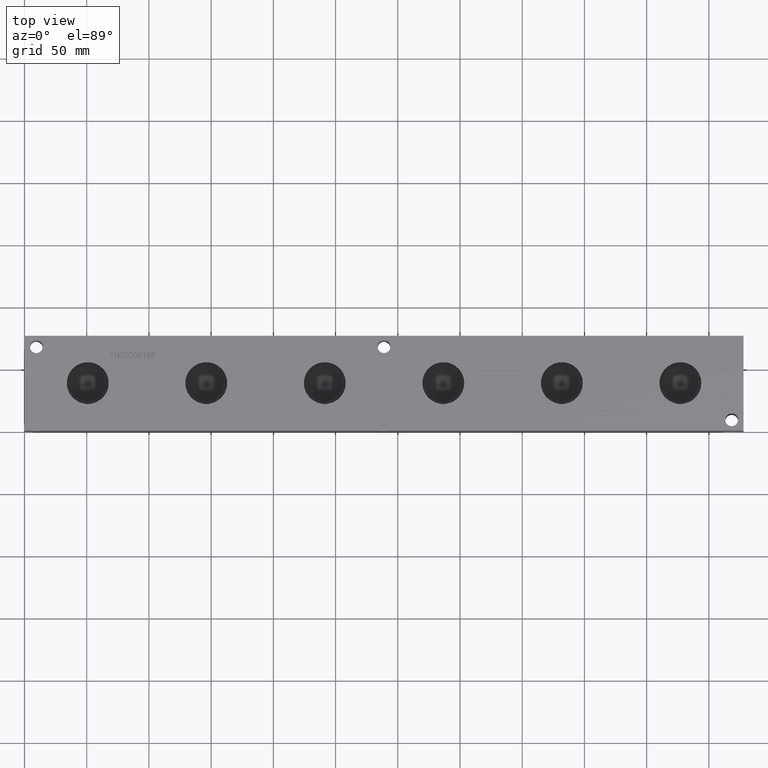
[diagram: clean part render]
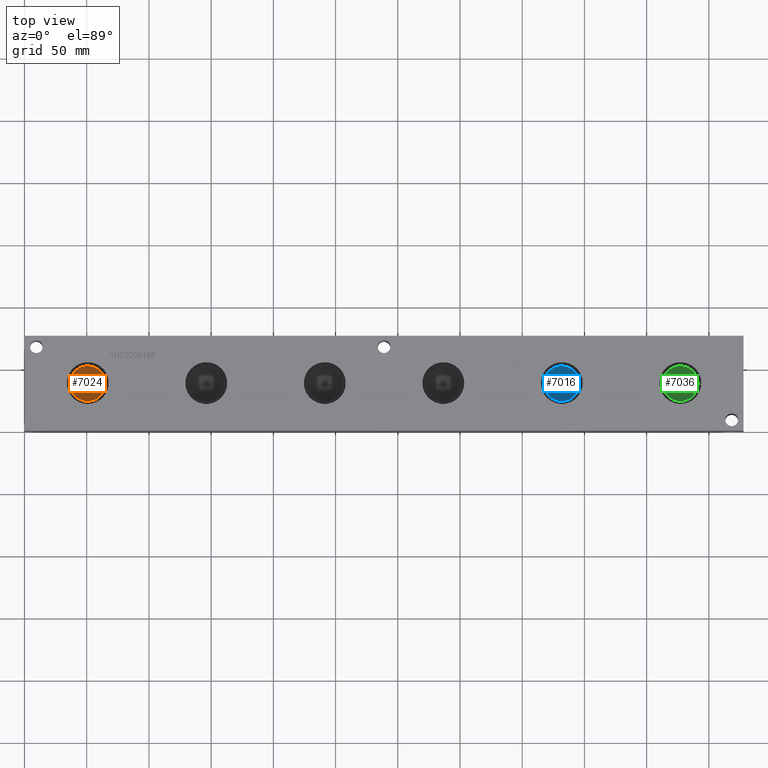
[diagram: same view with three faces highlighted in distinct colors, each labeled with its STEP entity id]
A machine part, top view with three faces highlighted in distinct colors.
Their STEP definitions:

[orange] entity #7024 — the highlighted conical surface has half-angle 60 deg.
#16=CONICAL_SURFACE('',#7344,7.14375,1.0471975511966);
#102=CIRCLE('',#7345,14.2875);
#103=CIRCLE('',#7346,14.2875);
#738=FACE_OUTER_BOUND('',#1135,.T.);
#1135=EDGE_LOOP('',(#6149,#6150,#6151,#6152));
#1832=LINE('',#11954,#2508);
#2508=VECTOR('',#8616,7.14375);
#3348=VERTEX_POINT('',#11950);
#3349=VERTEX_POINT('',#11951);
#3350=VERTEX_POINT('',#11953);
#4300=EDGE_CURVE('',#3348,#3349,#102,.T.);
#4301=EDGE_CURVE('',#3349,#3350,#1832,.T.);
#4302=EDGE_CURVE('',#3349,#3348,#103,.T.);
#6149=ORIENTED_EDGE('',*,*,#4300,.T.);
#6150=ORIENTED_EDGE('',*,*,#4301,.T.);
#6151=ORIENTED_EDGE('',*,*,#4301,.F.);
#6152=ORIENTED_EDGE('',*,*,#4302,.T.);
#7024=ADVANCED_FACE('',(#738),#16,.F.);
#7344=AXIS2_PLACEMENT_3D('',#11949,#8612,#8613);
#7345=AXIS2_PLACEMENT_3D('',#11952,#8614,#8615);
#7346=AXIS2_PLACEMENT_3D('',#11955,#8617,#8618);
#8612=DIRECTION('center_axis',(0.,0.,1.));
#8613=DIRECTION('ref_axis',(1.,0.,0.));
#8614=DIRECTION('center_axis',(0.,0.,1.));
#8615=DIRECTION('ref_axis',(1.,0.,0.));
#8616=DIRECTION('',(0.866025403784438,1.06057523872491E-16,-0.5));
#8617=DIRECTION('center_axis',(0.,0.,1.));
#8618=DIRECTION('ref_axis',(1.,0.,0.));
#11949=CARTESIAN_POINT('Origin',(50.8,38.1,52.2514640144766));
#11950=CARTESIAN_POINT('',(65.0875,38.1,56.37591));
#11951=CARTESIAN_POINT('',(36.5125,38.1,56.37591));
#11952=CARTESIAN_POINT('Origin',(50.8,38.1,56.37591));
#11953=CARTESIAN_POINT('',(50.8,38.1,48.1270180289532));
#11954=CARTESIAN_POINT('',(43.65625,38.1,52.2514640144766));
#11955=CARTESIAN_POINT('Origin',(50.8,38.1,56.37591));

[blue] entity #7016 — the highlighted conical surface has half-angle 60 deg.
#14=CONICAL_SURFACE('',#7326,7.14375,1.0471975511966);
#92=CIRCLE('',#7327,14.2875);
#93=CIRCLE('',#7328,14.2875);
#730=FACE_OUTER_BOUND('',#1125,.T.);
#1125=EDGE_LOOP('',(#6113,#6114,#6115,#6116));
#1826=LINE('',#11918,#2502);
#2502=VECTOR('',#8574,7.14375);
#3336=VERTEX_POINT('',#11914);
#3337=VERTEX_POINT('',#11915);
#3338=VERTEX_POINT('',#11917);
#4284=EDGE_CURVE('',#3336,#3337,#92,.T.);
#4285=EDGE_CURVE('',#3337,#3338,#1826,.T.);
#4286=EDGE_CURVE('',#3337,#3336,#93,.T.);
#6113=ORIENTED_EDGE('',*,*,#4284,.T.);
#6114=ORIENTED_EDGE('',*,*,#4285,.T.);
#6115=ORIENTED_EDGE('',*,*,#4285,.F.);
#6116=ORIENTED_EDGE('',*,*,#4286,.T.);
#7016=ADVANCED_FACE('',(#730),#14,.F.);
#7326=AXIS2_PLACEMENT_3D('',#11913,#8570,#8571);
#7327=AXIS2_PLACEMENT_3D('',#11916,#8572,#8573);
#7328=AXIS2_PLACEMENT_3D('',#11919,#8575,#8576);
#8570=DIRECTION('center_axis',(0.,0.,1.));
#8571=DIRECTION('ref_axis',(1.,0.,0.));
#8572=DIRECTION('center_axis',(0.,0.,1.));
#8573=DIRECTION('ref_axis',(1.,0.,0.));
#8574=DIRECTION('',(0.866025403784438,1.06057523872491E-16,-0.5));
#8575=DIRECTION('center_axis',(0.,0.,1.));
#8576=DIRECTION('ref_axis',(1.,0.,0.));
#11913=CARTESIAN_POINT('Origin',(431.8,38.1,52.2514640144766));
#11914=CARTESIAN_POINT('',(446.0875,38.1,56.37591));
#11915=CARTESIAN_POINT('',(417.5125,38.1,56.37591));
#11916=CARTESIAN_POINT('Origin',(431.8,38.1,56.37591));
#11917=CARTESIAN_POINT('',(431.8,38.1,48.1270180289532));
#11918=CARTESIAN_POINT('',(424.65625,38.1,52.2514640144766));
#11919=CARTESIAN_POINT('Origin',(431.8,38.1,56.37591));

[green] entity #7036 — the highlighted conical surface has half-angle 60 deg.
#19=CONICAL_SURFACE('',#7371,7.14375,1.0471975511966);
#117=CIRCLE('',#7372,14.2875);
#118=CIRCLE('',#7373,14.2875);
#750=FACE_OUTER_BOUND('',#1150,.T.);
#1150=EDGE_LOOP('',(#6203,#6204,#6205,#6206));
#1841=LINE('',#12008,#2517);
#2517=VECTOR('',#8679,7.14375);
#3366=VERTEX_POINT('',#12004);
#3367=VERTEX_POINT('',#12005);
#3368=VERTEX_POINT('',#12007);
#4324=EDGE_CURVE('',#3366,#3367,#117,.T.);
#4325=EDGE_CURVE('',#3367,#3368,#1841,.T.);
#4326=EDGE_CURVE('',#3367,#3366,#118,.T.);
#6203=ORIENTED_EDGE('',*,*,#4324,.T.);
#6204=ORIENTED_EDGE('',*,*,#4325,.T.);
#6205=ORIENTED_EDGE('',*,*,#4325,.F.);
#6206=ORIENTED_EDGE('',*,*,#4326,.T.);
#7036=ADVANCED_FACE('',(#750),#19,.F.);
#7371=AXIS2_PLACEMENT_3D('',#12003,#8675,#8676);
#7372=AXIS2_PLACEMENT_3D('',#12006,#8677,#8678);
#7373=AXIS2_PLACEMENT_3D('',#12009,#8680,#8681);
#8675=DIRECTION('center_axis',(0.,0.,1.));
#8676=DIRECTION('ref_axis',(1.,0.,0.));
#8677=DIRECTION('center_axis',(0.,0.,1.));
#8678=DIRECTION('ref_axis',(1.,0.,0.));
#8679=DIRECTION('',(0.866025403784438,1.06057523872491E-16,-0.5));
#8680=DIRECTION('center_axis',(0.,0.,1.));
#8681=DIRECTION('ref_axis',(1.,0.,0.));
#12003=CARTESIAN_POINT('Origin',(527.05,38.1,52.2514640144766));
#12004=CARTESIAN_POINT('',(541.3375,38.1,56.37591));
#12005=CARTESIAN_POINT('',(512.7625,38.1,56.37591));
#12006=CARTESIAN_POINT('Origin',(527.05,38.1,56.37591));
#12007=CARTESIAN_POINT('',(527.05,38.1,48.1270180289532));
#12008=CARTESIAN_POINT('',(519.90625,38.1,52.2514640144766));
#12009=CARTESIAN_POINT('Origin',(527.05,38.1,56.37591));